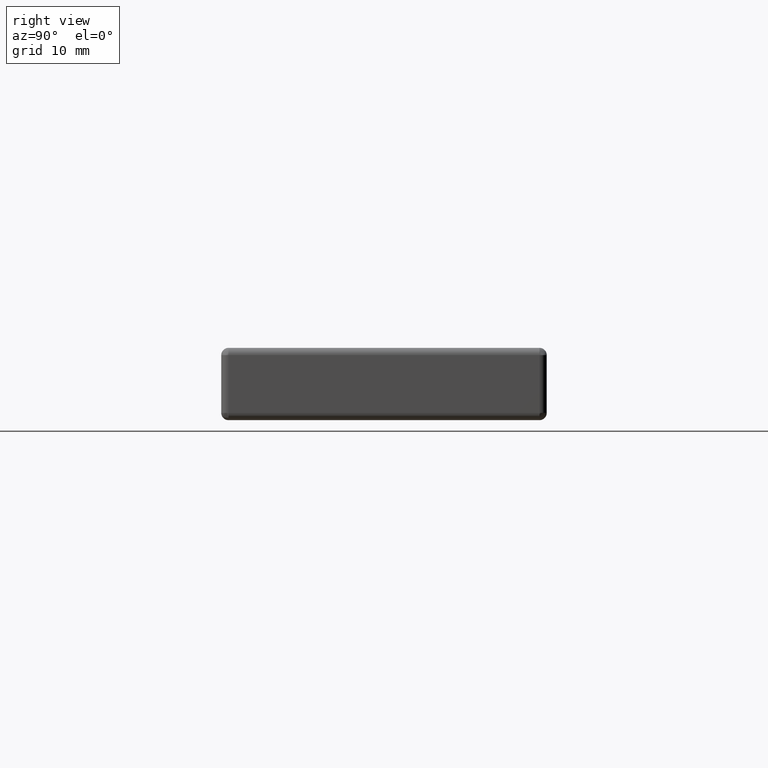
[diagram: clean part render]
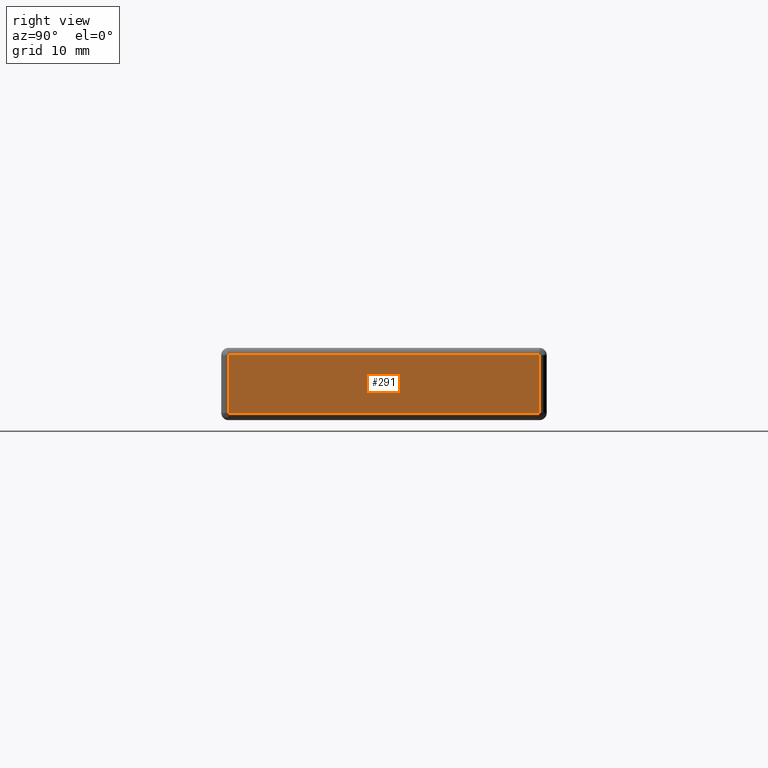
[diagram: same view with one face highlighted and labeled with its STEP entity id]
A machine part, right view. The second image highlights one B-rep face of the part: STEP entity #291.
In plain terms, the highlighted planar face has unit normal (1, 0, 0).
Its self-contained STEP definition (entity closure, byte-faithful):
#252=CARTESIAN_POINT('',(0.292893218813450,-22.499999999999996,-0.292893218813449));
#253=DIRECTION('',(1.0,0.0,0.0));
#254=DIRECTION('',(0.0,1.0,0.0));
#255=AXIS2_PLACEMENT_3D('',#252,#253,#254);
#256=PLANE('',#255);
#257=CARTESIAN_POINT('',(0.292893218813507,21.499999999999993,8.707106781186552));
#258=VERTEX_POINT('',#257);
#259=CARTESIAN_POINT('',(0.292893218813450,-21.499999999999993,8.707106781186552));
#260=VERTEX_POINT('',#259);
#261=CARTESIAN_POINT('',(0.292893218813450,21.499999999999986,8.707106781186552));
#262=DIRECTION('',(0.0,-1.0,0.0));
#263=VECTOR('',#262,42.999999999999979);
#264=LINE('',#261,#263);
#265=EDGE_CURVE('',#258,#260,#264,.T.);
#266=ORIENTED_EDGE('',*,*,#265,.T.);
#267=CARTESIAN_POINT('',(0.292893218813450,-21.499999999999993,0.707106781186548));
#268=VERTEX_POINT('',#267);
#269=CARTESIAN_POINT('',(0.292893218813450,-21.499999999999993,8.707106781186552));
#270=DIRECTION('',(0.0,0.0,-1.0));
#271=VECTOR('',#270,8.000000000000004);
#272=LINE('',#269,#271);
#273=EDGE_CURVE('',#260,#268,#272,.T.);
#274=ORIENTED_EDGE('',*,*,#273,.T.);
#275=CARTESIAN_POINT('',(0.292893218813507,21.499999999999993,0.707106781186548));
#276=VERTEX_POINT('',#275);
#277=CARTESIAN_POINT('',(0.292893218813450,-21.499999999999993,0.707106781186548));
#278=DIRECTION('',(0.0,1.0,0.0));
#279=VECTOR('',#278,42.999999999999986);
#280=LINE('',#277,#279);
#281=EDGE_CURVE('',#268,#276,#280,.T.);
#282=ORIENTED_EDGE('',*,*,#281,.T.);
#283=CARTESIAN_POINT('',(0.292893218813507,21.499999999999993,0.707106781186548));
#284=DIRECTION('',(0.0,0.0,1.0));
#285=VECTOR('',#284,8.000000000000004);
#286=LINE('',#283,#285);
#287=EDGE_CURVE('',#276,#258,#286,.T.);
#288=ORIENTED_EDGE('',*,*,#287,.T.);
#289=EDGE_LOOP('',(#266,#274,#282,#288));
#290=FACE_OUTER_BOUND('',#289,.T.);
#291=ADVANCED_FACE('',(#290),#256,.T.);